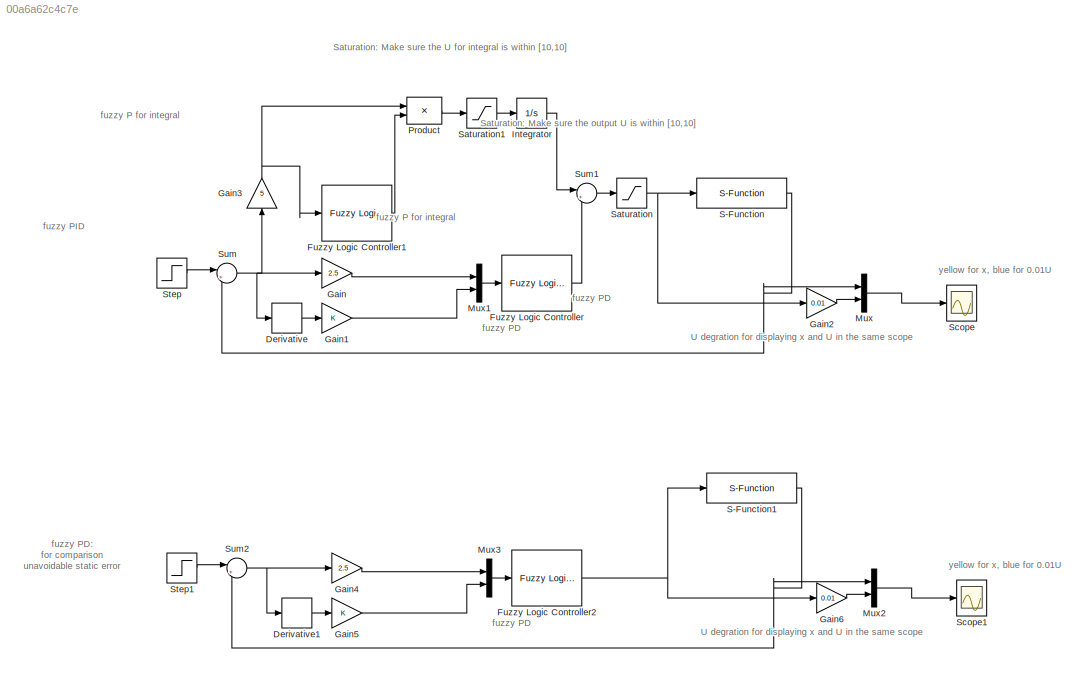
MODEL slx_00a6a62c4c7e
KIND model
CONFIG AbsTol = auto
CONFIG EnableMultiTasking = off
CONFIG FixedStep = auto
CONFIG MaxStep = auto
CONFIG MinStep = auto
CONFIG RelTol = 1e-3
CONFIG SampleTimeConstraint = Unconstrained
CONFIG SolverName = VariableStepAuto
CONFIG StartTime = 0.0
CONFIG StopTime = 10
BLOCK [Derivative] Derivative
BLOCK [Derivative] Derivative1
BLOCK [Reference] Fuzzy Logic Controller  REF=fuzblock/Fuzzy Logic   (lib defined in mdl_858b3b3e7478)
Controller
  SourceBlock = fuzblock/Fuzzy Logic \nController
  SourceType = Fuzzy Inference System
BLOCK [Reference] Fuzzy Logic Controller1  REF=fuzblock/Fuzzy Logic   (lib defined in mdl_858b3b3e7478)
Controller
  SourceBlock = fuzblock/Fuzzy Logic \nController
  SourceType = Fuzzy Inference System
BLOCK [Reference] Fuzzy Logic Controller2  REF=fuzblock/Fuzzy Logic   (lib defined in mdl_858b3b3e7478)
Controller
  SourceBlock = fuzblock/Fuzzy Logic \nController
  SourceType = Fuzzy Inference System
BLOCK [Gain] Gain
  Gain = 2.5
BLOCK [Gain] Gain1
BLOCK [Gain] Gain2
  Gain = 0.01
BLOCK [Gain] Gain3
  Gain = 5
  NameLocation = right
BLOCK [Gain] Gain4
  Gain = 2.5
BLOCK [Gain] Gain5
BLOCK [Gain] Gain6
  Gain = 0.01
BLOCK [Integrator] Integrator
BLOCK [Mux] Mux
  DisplayOption = bar
  Inputs = 2
BLOCK [Mux] Mux1
  DisplayOption = bar
  Inputs = 2
BLOCK [Mux] Mux2
  DisplayOption = bar
  Inputs = 2
BLOCK [Mux] Mux3
  DisplayOption = bar
  Inputs = 2
BLOCK [Product] Product
BLOCK [S-Function] S-Function
  EnableBusSupport = off
  FunctionName = system_transfer
  SFcnIsStateOwnerBlock = off
  SFunctionDeploymentMode = off
BLOCK [S-Function] S-Function1
  EnableBusSupport = off
  FunctionName = system_transfer
  SFcnIsStateOwnerBlock = off
  SFunctionDeploymentMode = off
BLOCK [Saturate] Saturation
  LowerLimit = -10
  UpperLimit = 10
BLOCK [Saturate] Saturation1
  LowerLimit = -10
  UpperLimit = 10
BLOCK [Scope] Scope
  Floating = off
  NumInputPorts = 1
  ScopeSpecificationString = Simulink.scopes.TimeScopeBlockCfg('CurrentConfiguration', extmgr.ConfigurationSet(extmgr.Configuration('Core','General UI',true),extmgr.Configuration('Core','Source UI',true),extmgr.Configuration('Sources','WiredSimulink',true),extmgr.Configuration('Visuals','Time Domain',true,'SerializedDisplays',{struct('MinYLimReal','0','MaxYLimReal','0.05','YLabelReal','','MinYLimMag','0.00000','MaxYLimMag','1...<+1523ch>
BLOCK [Scope] Scope1
  Floating = off
  NumInputPorts = 1
  ScopeSpecificationString = Simulink.scopes.TimeScopeBlockCfg('CurrentConfiguration', extmgr.ConfigurationSet(extmgr.Configuration('Core','General UI',true),extmgr.Configuration('Core','Source UI',true),extmgr.Configuration('Sources','WiredSimulink',true,'DataLoggingVariableName','ScopeData1'),extmgr.Configuration('Visuals','Time Domain',true,'SerializedDisplays',{struct('MinYLimReal','0','MaxYLimReal','0.05','YLabelReal',''...<+1564ch>
BLOCK [Step] Step
  After = 0.05
  SampleTime = 0
  Time = 0
BLOCK [Step] Step1
  After = 0.05
  SampleTime = 0
  Time = 0
BLOCK [Sum] Sum
  Inputs = |+-
BLOCK [Sum] Sum1
  Inputs = |++
BLOCK [Sum] Sum2
  Inputs = |+-
ANNOTATION (root): Saturation: Make sure the U for integral is within [10,10]
ANNOTATION (root): Saturation: Make sure the output U is within [10,10]
ANNOTATION (root): U degration for displaying x and U in the same scope
ANNOTATION (root): fuzzy P for integral
ANNOTATION (root): fuzzy PD
ANNOTATION (root): fuzzy PD: for comparison unavoidable static error
ANNOTATION (root): fuzzy PID
ANNOTATION (root): yellow for x, blue for 0.01U
LINE Derivative1:1 -> Gain5:1
LINE Derivative:1 -> Gain1:1
LINE Fuzzy Logic Controller1:1 -> Product:2
NET Fuzzy Logic Controller2:1 -> Gain6:1, S-Function1:1
LINE Fuzzy Logic Controller:1 -> Sum1:2
LINE Gain1:1 -> Mux1:2
LINE Gain2:1 -> Mux:2
NET Gain3:1 -> Fuzzy Logic Controller1:1, Product:1
LINE Gain4:1 -> Mux3:1
LINE Gain5:1 -> Mux3:2
LINE Gain6:1 -> Mux2:2
LINE Gain:1 -> Mux1:1
LINE Integrator:1 -> Sum1:1
LINE Mux1:1 -> Fuzzy Logic Controller:1
LINE Mux2:1 -> Scope1:1
LINE Mux3:1 -> Fuzzy Logic Controller2:1
LINE Mux:1 -> Scope:1
LINE Product:1 -> Saturation1:1
NET S-Function1:1 -> Mux2:1, Sum2:2
NET S-Function:1 -> Mux:1, Sum:2
LINE Saturation1:1 -> Integrator:1
NET Saturation:1 -> Gain2:1, S-Function:1
LINE Step1:1 -> Sum2:1
LINE Step:1 -> Sum:1
LINE Sum1:1 -> Saturation:1
NET Sum2:1 -> Derivative1:1, Gain4:1
NET Sum:1 -> Derivative:1, Gain3:1, Gain:1
note: NET lines group one-source signal fan-out (src -> all destinations, sorted); 1:1 wires keep LINE
